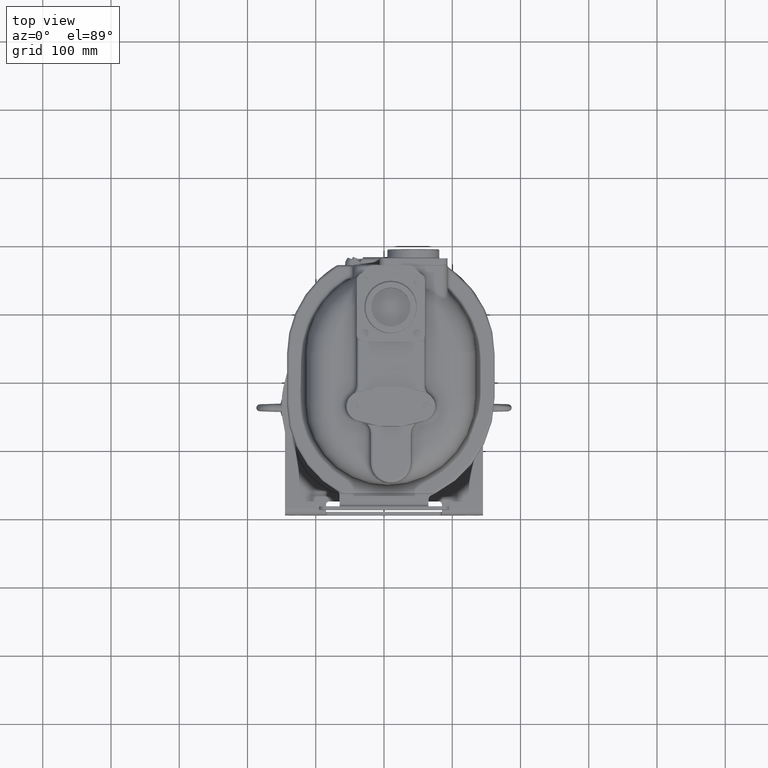
[diagram: clean part render]
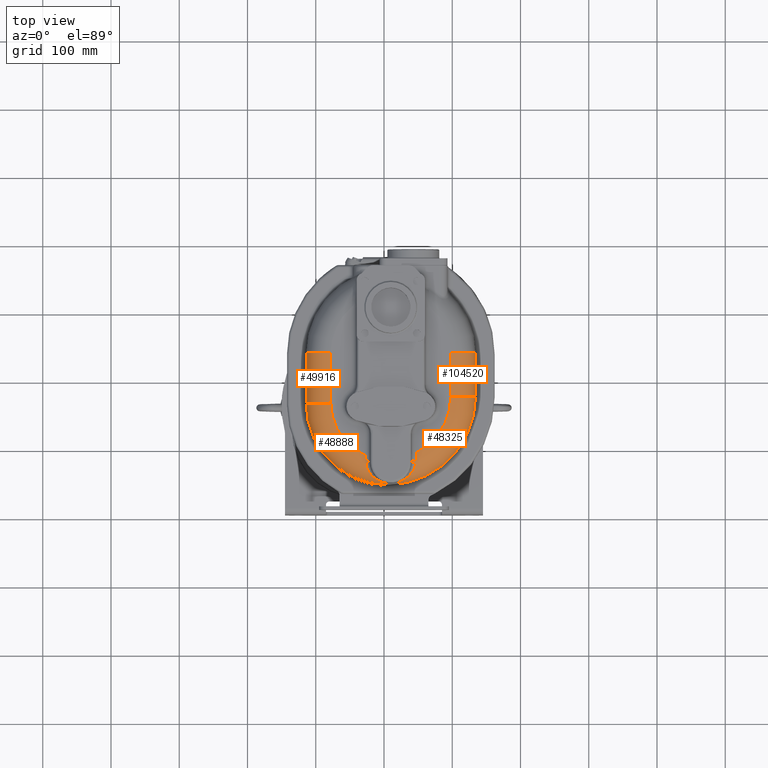
[diagram: same view with one multi-face feature highlighted, each face labeled with its STEP entity id]
A machine part, top view. The highlighted faces form ONE feature: a constant-radius fillet chain: 4 tangent blend faces with common blend radius 36 mm. The faces share edges in the B-rep.
Their STEP definitions:
[1] entity #49916 (Cylinder):
#212=CARTESIAN_POINT('',(-7.8E1,1.55E2,4.8E1));
#213=DIRECTION('',(0.E0,-1.E0,0.E0));
#214=DIRECTION('',(0.E0,0.E0,1.E0));
#215=AXIS2_PLACEMENT_3D('',#212,#213,#214);
#255=DIRECTION('',(0.E0,-1.E0,0.E0));
#256=VECTOR('',#255,7.4E1);
#257=CARTESIAN_POINT('',(-7.8E1,2.29E2,8.4E1));
#258=LINE('',#257,#256);
#598=DIRECTION('',(0.E0,-1.E0,0.E0));
#599=VECTOR('',#598,7.4E1);
#600=CARTESIAN_POINT('',(-1.14E2,2.29E2,4.8E1));
#601=LINE('',#600,#599);
#606=CARTESIAN_POINT('',(-7.8E1,2.29E2,4.8E1));
#607=DIRECTION('',(0.E0,-1.E0,0.E0));
#608=DIRECTION('',(0.E0,0.E0,1.E0));
#609=AXIS2_PLACEMENT_3D('',#606,#607,#608);
#40074=CARTESIAN_POINT('',(-1.14E2,1.55E2,4.8E1));
#40075=VERTEX_POINT('',#40074);
#40076=CARTESIAN_POINT('',(-7.8E1,2.29E2,8.4E1));
#40077=CARTESIAN_POINT('',(-7.8E1,1.55E2,8.4E1));
#40078=VERTEX_POINT('',#40076);
#40079=VERTEX_POINT('',#40077);
#40080=CARTESIAN_POINT('',(-1.14E2,2.29E2,4.8E1));
#40081=VERTEX_POINT('',#40080);
#49905=CARTESIAN_POINT('',(-7.8E1,2.290218436E2,4.8E1));
#49906=DIRECTION('',(0.E0,-1.E0,0.E0));
#49907=DIRECTION('',(0.E0,0.E0,1.E0));
#49908=AXIS2_PLACEMENT_3D('',#49905,#49906,#49907);
#49909=CYLINDRICAL_SURFACE('',#49908,3.6E1);
#49910=ORIENTED_EDGE('',*,*,#48981,.T.);
#49911=ORIENTED_EDGE('',*,*,#48882,.T.);
#49912=ORIENTED_EDGE('',*,*,#49898,.F.);
#49913=ORIENTED_EDGE('',*,*,#49155,.F.);
#49914=EDGE_LOOP('',(#49910,#49911,#49912,#49913));
#49915=FACE_OUTER_BOUND('',#49914,.F.);
#49916=ADVANCED_FACE('',(#49915),#49909,.T.);
#216=CIRCLE('',#215,3.6E1);
#610=CIRCLE('',#609,3.6E1);
#48882=EDGE_CURVE('',#40079,#40075,#216,.T.);
#48981=EDGE_CURVE('',#40078,#40079,#258,.T.);
#49155=EDGE_CURVE('',#40078,#40081,#610,.T.);
#49898=EDGE_CURVE('',#40081,#40075,#601,.T.);
[2] entity #48888 (Torus):
#132=CARTESIAN_POINT('',(5.E0,7.2E1,4.8E1));
#133=DIRECTION('',(1.E0,0.E0,0.E0));
#134=DIRECTION('',(0.E0,-9.470367364472E-1,3.211252400848E-1));
#135=AXIS2_PLACEMENT_3D('',#132,#133,#134);
#147=CARTESIAN_POINT('',(-2.8E1,7.884226894123E1,8.4E1));
#148=CARTESIAN_POINT('',(-2.796887335442E1,7.844482621410E1,8.399999997615E1));
#149=CARTESIAN_POINT('',(-2.790773889932E1,7.765366918214E1,8.398965294363E1));
#150=CARTESIAN_POINT('',(-2.781935700238E1,7.647946031069E1,8.394360526421E1));
#151=CARTESIAN_POINT('',(-2.773414064813E1,7.531769571966E1,8.386752703401E1));
#152=CARTESIAN_POINT('',(-2.765197814064E1,7.416871936770E1,8.376190215763E1));
#153=CARTESIAN_POINT('',(-2.757275213691E1,7.303276223749E1,8.362720156811E1));
#154=CARTESIAN_POINT('',(-2.749635265713E1,7.191008760233E1,8.346388172989E1));
#155=CARTESIAN_POINT('',(-2.742268197510E1,7.080105447963E1,8.327240920041E1));
#156=CARTESIAN_POINT('',(-2.737531113419E1,7.007085606924E1,8.312626078228E1));
#157=CARTESIAN_POINT('',(-2.735205480582E1,6.970821914830E1,8.304866082929E1));
#159=CARTESIAN_POINT('',(-2.735205480582E1,6.970821914830E1,8.304866082929E1));
#160=CARTESIAN_POINT('',(-2.733506702982E1,6.944333312177E1,8.299197838754E1));
#161=CARTESIAN_POINT('',(-2.729365067701E1,6.891054423816E1,8.287320386509E1));
#162=CARTESIAN_POINT('',(-2.720861721266E1,6.810292424292E1,8.267861022019E1));
#163=CARTESIAN_POINT('',(-2.709998633077E1,6.728676671709E1,8.246719675105E1));
#164=CARTESIAN_POINT('',(-2.696712752290E1,6.646272181276E1,8.223874572294E1));
#165=CARTESIAN_POINT('',(-2.680936846517E1,6.563117099338E1,8.199296987110E1));
#166=CARTESIAN_POINT('',(-2.662605019077E1,6.479268387211E1,8.172962639141E1));
#167=CARTESIAN_POINT('',(-2.641651116625E1,6.394785035173E1,8.144847779957E1));
#168=CARTESIAN_POINT('',(-2.618009970314E1,6.309733790166E1,8.114930967858E1));
#169=CARTESIAN_POINT('',(-2.591617665159E1,6.224187509509E1,8.083192954160E1));
#170=CARTESIAN_POINT('',(-2.562412126974E1,6.138225653823E1,8.049617142217E1));
#171=CARTESIAN_POINT('',(-2.530333633348E1,6.051934141158E1,8.014189892427E1));
#172=CARTESIAN_POINT('',(-2.495325350619E1,5.965405311886E1,7.976900868750E1));
#173=CARTESIAN_POINT('',(-2.457333860447E1,5.878737793606E1,7.937743369338E1));
#174=CARTESIAN_POINT('',(-2.416309685851E1,5.792036340624E1,7.896714663396E1));
#175=CARTESIAN_POINT('',(-2.372207837150E1,5.705411676285E1,7.853816355169E1));
#176=CARTESIAN_POINT('',(-2.324988315131E1,5.618980214433E1,7.809054716787E1));
#177=CARTESIAN_POINT('',(-2.274616637860E1,5.532863809976E1,7.762441062673E1));
#178=CARTESIAN_POINT('',(-2.221064343787E1,5.447189438491E1,7.713992122378E1));
#179=CARTESIAN_POINT('',(-2.164309503947E1,5.362088870435E1,7.663730449218E1));
#180=CARTESIAN_POINT('',(-2.104337232981E1,5.277698314329E1,7.611684859587E1));
#181=CARTESIAN_POINT('',(-2.041140218633E1,5.194158053117E1,7.557890926073E1));
#182=CARTESIAN_POINT('',(-1.974719272740E1,5.111612064981E1,7.502391532228E1));
#183=CARTESIAN_POINT('',(-1.905083937689E1,5.030207656484E1,7.445237523273E1));
#184=CARTESIAN_POINT('',(-1.832253171382E1,4.950095106789E1,7.386488475885E1));
#185=CARTESIAN_POINT('',(-1.756256139461E1,4.871427323612E1,7.326213614895E1));
#186=CARTESIAN_POINT('',(-1.677133217686E1,4.794359569630E1,7.264492960288E1));
#187=CARTESIAN_POINT('',(-1.594937201179E1,4.719049187728E1,7.201418699668E1));
#188=CARTESIAN_POINT('',(-1.509734938998E1,4.645655449543E1,7.137096948445E1));
#189=CARTESIAN_POINT('',(-1.421609435858E1,4.574339432873E1,7.071649908693E1));
#190=CARTESIAN_POINT('',(-1.330662686067E1,4.505264003120E1,7.005218592933E1));
#191=CARTESIAN_POINT('',(-1.237019450456E1,4.438593852243E1,6.937966206206E1));
#192=CARTESIAN_POINT('',(-1.140832303049E1,4.374495574049E1,6.870082321632E1));
#193=CARTESIAN_POINT('',(-1.042288232655E1,4.313137651769E1,6.801787893526E1));
#194=CARTESIAN_POINT('',(-9.416172200176E0,4.254690246470E1,6.733341152634E1));
#195=CARTESIAN_POINT('',(-8.391026777500E0,4.199324318742E1,6.665043943625E1));
#196=CARTESIAN_POINT('',(-7.350937144428E0,4.147209731216E1,6.597247976564E1));
#197=CARTESIAN_POINT('',(-6.300174870832E0,4.098511321891E1,6.530359229029E1));
#198=CARTESIAN_POINT('',(-5.243895330833E0,4.053382284783E1,6.464838451407E1));
#199=CARTESIAN_POINT('',(-4.188151540611E0,4.011953144889E1,6.401193047520E1));
#200=CARTESIAN_POINT('',(-3.139808161606E0,3.974318221899E1,6.339959857333E1));
#201=CARTESIAN_POINT('',(-2.106179500850E0,3.940516615658E1,6.281669849873E1));
#202=CARTESIAN_POINT('',(-1.094558676794E0,3.910518191326E1,6.226807867071E1));
#203=CARTESIAN_POINT('',(-1.115560433838E-1,3.884213606269E1,6.175766259163E1));
#204=CARTESIAN_POINT('',(8.375364557941E-1,3.861415841496E1,6.128808666304E1));
#205=CARTESIAN_POINT('',(1.749071453210E0,3.841876093870E1,6.086059297184E1));
#206=CARTESIAN_POINT('',(2.621311378866E0,3.825302277921E1,6.047503136011E1));
#207=CARTESIAN_POINT('',(3.454174649291E0,3.811387181742E1,6.013017738922E1));
#208=CARTESIAN_POINT('',(4.248220830536E0,3.799836281671E1,5.982427999743E1));
#209=CARTESIAN_POINT('',(4.753663599509E0,3.793516079517E1,5.964450929975E1));
#210=CARTESIAN_POINT('',(5.E0,3.790667748790E1,5.956050864305E1));
#212=CARTESIAN_POINT('',(-7.8E1,1.55E2,4.8E1));
#213=DIRECTION('',(0.E0,-1.E0,0.E0));
#214=DIRECTION('',(0.E0,0.E0,1.E0));
#215=AXIS2_PLACEMENT_3D('',#212,#213,#214);
#250=CARTESIAN_POINT('',(5.E0,1.55E2,8.4E1));
#251=DIRECTION('',(0.E0,0.E0,1.E0));
#252=DIRECTION('',(-1.E0,0.E0,0.E0));
#253=AXIS2_PLACEMENT_3D('',#250,#251,#252);
#616=CARTESIAN_POINT('',(5.E0,1.55E2,4.8E1));
#617=DIRECTION('',(0.E0,0.E0,1.E0));
#618=DIRECTION('',(-1.E0,0.E0,0.E0));
#619=AXIS2_PLACEMENT_3D('',#616,#617,#618);
#40072=CARTESIAN_POINT('',(4.999999999999E0,3.6E1,4.8E1));
#40073=VERTEX_POINT('',#40072);
#40074=CARTESIAN_POINT('',(-1.14E2,1.55E2,4.8E1));
#40075=VERTEX_POINT('',#40074);
#40077=CARTESIAN_POINT('',(-7.8E1,1.55E2,8.4E1));
#40079=VERTEX_POINT('',#40077);
#40109=CARTESIAN_POINT('',(-2.8E1,7.884226894123E1,8.4E1));
#40110=VERTEX_POINT('',#40109);
#40113=VERTEX_POINT('',#157);
#40115=VERTEX_POINT('',#210);
#48871=CARTESIAN_POINT('',(5.E0,1.55E2,4.8E1));
#48872=DIRECTION('',(0.E0,0.E0,-1.E0));
#48873=DIRECTION('',(-9.999999831529E-1,1.835596628325E-4,0.E0));
#48874=AXIS2_PLACEMENT_3D('',#48871,#48872,#48873);
#48875=TOROIDAL_SURFACE('',#48874,8.3E1,3.6E1);
#48877=ORIENTED_EDGE('',*,*,#48876,.T.);
#48878=ORIENTED_EDGE('',*,*,#48861,.T.);
#48879=ORIENTED_EDGE('',*,*,#48321,.T.);
#48881=ORIENTED_EDGE('',*,*,#48880,.F.);
#48883=ORIENTED_EDGE('',*,*,#48882,.F.);
#48885=ORIENTED_EDGE('',*,*,#48884,.T.);
#48886=EDGE_LOOP('',(#48877,#48878,#48879,#48881,#48883,#48885));
#48887=FACE_OUTER_BOUND('',#48886,.F.);
#48888=ADVANCED_FACE('',(#48887),#48875,.T.);
#136=CIRCLE('',#135,3.6E1);
#158=B_SPLINE_CURVE_WITH_KNOTS('',3,(#147,#148,#149,#150,#151,#152,#153,#154,
#155,#156,#157),.UNSPECIFIED.,.F.,.F.,(4,1,1,1,1,1,1,1,4),(0.E0,1.25E-1,2.5E-1,
3.75E-1,5.E-1,6.25E-1,7.5E-1,8.75E-1,1.E0),.UNSPECIFIED.);
#211=B_SPLINE_CURVE_WITH_KNOTS('',3,(#159,#160,#161,#162,#163,#164,#165,#166,
#167,#168,#169,#170,#171,#172,#173,#174,#175,#176,#177,#178,#179,#180,#181,#182,
#183,#184,#185,#186,#187,#188,#189,#190,#191,#192,#193,#194,#195,#196,#197,#198,
#199,#200,#201,#202,#203,#204,#205,#206,#207,#208,#209,#210),.UNSPECIFIED.,.F.,
.F.,(4,1,1,1,1,1,1,1,1,1,1,1,1,1,1,1,1,1,1,1,1,1,1,1,1,1,1,1,1,1,1,1,1,1,1,1,1,
1,1,1,1,1,1,1,1,1,1,1,1,4),(0.E0,2.040816326531E-2,4.081632653061E-2,
6.122448979592E-2,8.163265306122E-2,1.020408163265E-1,1.224489795918E-1,
1.428571428571E-1,1.632653061224E-1,1.836734693878E-1,2.040816326531E-1,
2.244897959184E-1,2.448979591837E-1,2.653061224490E-1,2.857142857143E-1,
3.061224489796E-1,3.265306122449E-1,3.469387755102E-1,3.673469387755E-1,
3.877551020408E-1,4.081632653061E-1,4.285714285714E-1,4.489795918367E-1,
4.693877551020E-1,4.897959183673E-1,5.102040816327E-1,5.306122448980E-1,
5.510204081633E-1,5.714285714286E-1,5.918367346939E-1,6.122448979592E-1,
6.326530612245E-1,6.530612244898E-1,6.734693877551E-1,6.938775510204E-1,
7.142857142857E-1,7.346938775510E-1,7.551020408163E-1,7.755102040816E-1,
7.959183673469E-1,8.163265306122E-1,8.367346938776E-1,8.571428571429E-1,
8.775510204082E-1,8.979591836735E-1,9.183673469388E-1,9.387755102041E-1,
9.591836734694E-1,9.795918367347E-1,1.E0),.UNSPECIFIED.);
#216=CIRCLE('',#215,3.6E1);
#254=CIRCLE('',#253,8.3E1);
#620=CIRCLE('',#619,1.19E2);
#48321=EDGE_CURVE('',#40115,#40073,#136,.T.);
#48861=EDGE_CURVE('',#40113,#40115,#211,.T.);
#48876=EDGE_CURVE('',#40110,#40113,#158,.T.);
#48880=EDGE_CURVE('',#40075,#40073,#620,.T.);
#48882=EDGE_CURVE('',#40079,#40075,#216,.T.);
#48884=EDGE_CURVE('',#40079,#40110,#254,.T.);
[3] entity #48325 (Torus):
#33=CARTESIAN_POINT('',(5.E0,1.65E2,8.4E1));
#34=DIRECTION('',(0.E0,0.E0,1.E0));
#35=DIRECTION('',(4.623655913954E-1,-8.866893818545E-1,0.E0));
#36=AXIS2_PLACEMENT_3D('',#33,#34,#35);
#48=CARTESIAN_POINT('',(5.E0,3.790667748790E1,5.956050864305E1));
#49=CARTESIAN_POINT('',(5.244708909877E0,3.787851770718E1,5.947746208673E1));
#50=CARTESIAN_POINT('',(5.724705178502E0,3.782793061494E1,5.932211304233E1));
#51=CARTESIAN_POINT('',(6.413720475741E0,3.776775967918E1,5.912068004852E1));
#52=CARTESIAN_POINT('',(7.076609140445E0,3.772127943457E1,5.894782859928E1));
#53=CARTESIAN_POINT('',(7.716526203015E0,3.768699100014E1,5.880138739014E1));
#54=CARTESIAN_POINT('',(8.336997827785E0,3.766363572305E1,5.867932613679E1));
#55=CARTESIAN_POINT('',(8.941253645545E0,3.765023330849E1,5.857997515355E1));
#56=CARTESIAN_POINT('',(9.532405803381E0,3.764603069732E1,5.850195732175E1));
#57=CARTESIAN_POINT('',(1.011341266516E1,3.765048202750E1,5.844419359864E1));
#58=CARTESIAN_POINT('',(1.068711730766E1,3.766322696867E1,5.840588551555E1));
#59=CARTESIAN_POINT('',(1.125627127465E1,3.768407666623E1,5.838650554610E1));
#60=CARTESIAN_POINT('',(1.182356874431E1,3.771300388366E1,5.838578588841E1));
#61=CARTESIAN_POINT('',(1.239167607903E1,3.775013980031E1,5.840371622456E1));
#62=CARTESIAN_POINT('',(1.296326870130E1,3.779577575242E1,5.844054370601E1));
#63=CARTESIAN_POINT('',(1.354105977679E1,3.785036970565E1,5.849677703828E1));
#64=CARTESIAN_POINT('',(1.412783214415E1,3.791455778603E1,5.857319329998E1));
#65=CARTESIAN_POINT('',(1.472646706325E1,3.798917146614E1,5.867084929222E1));
#66=CARTESIAN_POINT('',(1.533996501374E1,3.807526006475E1,5.879109581638E1));
#67=CARTESIAN_POINT('',(1.597145818122E1,3.817411742216E1,5.893558944746E1));
#68=CARTESIAN_POINT('',(1.662420719467E1,3.828731213520E1,5.910629993922E1));
#69=CARTESIAN_POINT('',(1.730157493636E1,3.841671883955E1,5.930550627733E1));
#70=CARTESIAN_POINT('',(1.800695998722E1,3.856454544934E1,5.953577194267E1));
#71=CARTESIAN_POINT('',(1.874367833729E1,3.873334855625E1,5.979988482942E1));
#72=CARTESIAN_POINT('',(1.951475949439E1,3.892602034742E1,6.010073760008E1));
#73=CARTESIAN_POINT('',(2.032268513438E1,3.914574044495E1,6.044114598791E1));
#74=CARTESIAN_POINT('',(2.116896726403E1,3.939584679852E1,6.082355015523E1));
#75=CARTESIAN_POINT('',(2.205365371526E1,3.967961391784E1,6.124961355566E1));
#76=CARTESIAN_POINT('',(2.297509670039E1,4.000003104198E1,6.171989757451E1));
#77=CARTESIAN_POINT('',(2.392973545714E1,4.035951681600E1,6.223354233655E1));
#78=CARTESIAN_POINT('',(2.491207558220E1,4.075963156156E1,6.278806537650E1));
#79=CARTESIAN_POINT('',(2.591518229664E1,4.120096825825E1,6.337951162992E1));
#80=CARTESIAN_POINT('',(2.693133270714E1,4.168317514033E1,6.400281197460E1));
#81=CARTESIAN_POINT('',(2.795264905621E1,4.220507059022E1,6.465223117733E1));
#82=CARTESIAN_POINT('',(2.897177927849E1,4.276490988423E1,6.532192025930E1));
#83=CARTESIAN_POINT('',(2.998224641538E1,4.336060975511E1,6.600629790408E1));
#84=CARTESIAN_POINT('',(3.097859065452E1,4.398993295776E1,6.670028883377E1));
#85=CARTESIAN_POINT('',(3.195634930009E1,4.465061351781E1,6.739942683503E1));
#86=CARTESIAN_POINT('',(3.291194482135E1,4.534042693225E1,6.809986070793E1));
#87=CARTESIAN_POINT('',(3.384253649953E1,4.605721849704E1,6.879830315908E1));
#88=CARTESIAN_POINT('',(3.474588063935E1,4.679891192502E1,6.949196107496E1));
#89=CARTESIAN_POINT('',(3.562020946788E1,4.756350619218E1,7.017846202682E1));
#90=CARTESIAN_POINT('',(3.646413263467E1,4.834906695715E1,7.085578603710E1));
#91=CARTESIAN_POINT('',(3.727656262694E1,4.915371885186E1,7.152220835974E1));
#92=CARTESIAN_POINT('',(3.805665774087E1,4.997563835384E1,7.217625174664E1));
#93=CARTESIAN_POINT('',(3.880377952351E1,5.081304857467E1,7.281664794559E1));
#94=CARTESIAN_POINT('',(3.951746140868E1,5.166421647694E1,7.344230728128E1));
#95=CARTESIAN_POINT('',(4.019738480653E1,5.252745142292E1,7.405229414786E1));
#96=CARTESIAN_POINT('',(4.084336107387E1,5.340110543063E1,7.464580764386E1));
#97=CARTESIAN_POINT('',(4.145531737546E1,5.428357447841E1,7.522216597626E1));
#98=CARTESIAN_POINT('',(4.203328527410E1,5.517330058688E1,7.578079378601E1));
#99=CARTESIAN_POINT('',(4.257739126447E1,5.606877454697E1,7.632121177696E1));
#100=CARTESIAN_POINT('',(4.308784855734E1,5.696853900143E1,7.684302804389E1));
#101=CARTESIAN_POINT('',(4.356494955247E1,5.787119143619E1,7.734593054251E1));
#102=CARTESIAN_POINT('',(4.400905911944E1,5.877538770507E1,7.782968081154E1));
#103=CARTESIAN_POINT('',(4.442060781861E1,5.967984476234E1,7.829410801595E1));
#104=CARTESIAN_POINT('',(4.480008557122E1,6.058334364972E1,7.873910378228E1));
#105=CARTESIAN_POINT('',(4.514803534354E1,6.148473208191E1,7.916461733028E1));
#106=CARTESIAN_POINT('',(4.546504679125E1,6.238292637060E1,7.957065074576E1));
#107=CARTESIAN_POINT('',(4.575175013509E1,6.327691358474E1,7.995725471197E1));
#108=CARTESIAN_POINT('',(4.600880966418E1,6.416575161624E1,8.032452373832E1));
#109=CARTESIAN_POINT('',(4.623691836684E1,6.504857358052E1,8.067259326181E1));
#110=CARTESIAN_POINT('',(4.643679035477E1,6.592458010078E1,8.100163271824E1));
#111=CARTESIAN_POINT('',(4.660915916357E1,6.679306663347E1,8.131185045523E1));
#112=CARTESIAN_POINT('',(4.675475869656E1,6.765333597604E1,8.160346139038E1));
#113=CARTESIAN_POINT('',(4.687434909699E1,6.850492596284E1,8.187675556859E1));
#114=CARTESIAN_POINT('',(4.696864141025E1,6.934703023634E1,8.213191703999E1));
#115=CARTESIAN_POINT('',(4.701516855599E1,6.990218075913E1,8.229023822901E1));
#116=CARTESIAN_POINT('',(4.703446095104E1,7.017807645928E1,8.236648476307E1));
#118=CARTESIAN_POINT('',(4.703446095104E1,7.017807645928E1,8.236648476307E1));
#119=CARTESIAN_POINT('',(4.706106796778E1,7.055858102513E1,8.247164099206E1));
#120=CARTESIAN_POINT('',(4.711528481374E1,7.132632626168E1,8.267257293733E1));
#121=CARTESIAN_POINT('',(4.719965314713E1,7.249701384692E1,8.294497537196E1));
#122=CARTESIAN_POINT('',(4.728719507150E1,7.368681505726E1,8.318783963594E1));
#123=CARTESIAN_POINT('',(4.737802058141E1,7.489545836863E1,8.340052131149E1));
#124=CARTESIAN_POINT('',(4.747225442330E1,7.612279462099E1,8.358238917504E1));
#125=CARTESIAN_POINT('',(4.757002501039E1,7.736865854406E1,8.373278627283E1));
#126=CARTESIAN_POINT('',(4.767146701404E1,7.863290263167E1,8.385103918925E1));
#127=CARTESIAN_POINT('',(4.777672672746E1,7.991544822632E1,8.393645243976E1));
#128=CARTESIAN_POINT('',(4.788594031510E1,8.121605665032E1,8.398830434233E1));
#129=CARTESIAN_POINT('',(4.796151744412E1,8.209541928996E1,8.399999997636E1));
#130=CARTESIAN_POINT('',(4.8E1,8.253788748751E1,8.4E1));
#132=CARTESIAN_POINT('',(5.E0,7.2E1,4.8E1));
#133=DIRECTION('',(1.E0,0.E0,0.E0));
#134=DIRECTION('',(0.E0,-9.470367364472E-1,3.211252400848E-1));
#135=AXIS2_PLACEMENT_3D('',#132,#133,#134);
#210=CARTESIAN_POINT('',(5.E0,3.790667748790E1,5.956050864305E1));
#634=CARTESIAN_POINT('',(5.E0,1.65E2,4.8E1));
#635=DIRECTION('',(0.E0,0.E0,1.E0));
#636=DIRECTION('',(0.E0,-1.E0,0.E0));
#637=AXIS2_PLACEMENT_3D('',#634,#635,#636);
#40045=CARTESIAN_POINT('',(9.8E1,1.65E2,4.8E1));
#40046=DIRECTION('',(0.E0,1.E0,0.E0));
#40047=DIRECTION('',(0.E0,0.E0,1.E0));
#40048=AXIS2_PLACEMENT_3D('',#40045,#40046,#40047);
#40064=CARTESIAN_POINT('',(9.8E1,1.65E2,8.4E1));
#40066=VERTEX_POINT('',#40064);
#40068=CARTESIAN_POINT('',(1.34E2,1.65E2,4.8E1));
#40070=VERTEX_POINT('',#40068);
#40072=CARTESIAN_POINT('',(4.999999999999E0,3.6E1,4.8E1));
#40073=VERTEX_POINT('',#40072);
#40115=VERTEX_POINT('',#210);
#40117=VERTEX_POINT('',#116);
#40119=VERTEX_POINT('',#130);
#48308=CARTESIAN_POINT('',(5.E0,1.65E2,4.8E1));
#48309=DIRECTION('',(0.E0,0.E0,-1.E0));
#48310=DIRECTION('',(-1.693302317542E-4,-9.999999856636E-1,0.E0));
#48311=AXIS2_PLACEMENT_3D('',#48308,#48309,#48310);
#48312=TOROIDAL_SURFACE('',#48311,9.3E1,3.6E1);
#48314=ORIENTED_EDGE('',*,*,#48313,.T.);
#48315=ORIENTED_EDGE('',*,*,#48298,.T.);
#48316=ORIENTED_EDGE('',*,*,#48213,.T.);
#48318=ORIENTED_EDGE('',*,*,#48317,.T.);
#48320=ORIENTED_EDGE('',*,*,#48319,.F.);
#48322=ORIENTED_EDGE('',*,*,#48321,.F.);
#48323=EDGE_LOOP('',(#48314,#48315,#48316,#48318,#48320,#48322));
#48324=FACE_OUTER_BOUND('',#48323,.F.);
#48325=ADVANCED_FACE('',(#48324),#48312,.T.);
#37=CIRCLE('',#36,9.3E1);
#117=B_SPLINE_CURVE_WITH_KNOTS('',3,(#48,#49,#50,#51,#52,#53,#54,#55,#56,#57,
#58,#59,#60,#61,#62,#63,#64,#65,#66,#67,#68,#69,#70,#71,#72,#73,#74,#75,#76,#77,
#78,#79,#80,#81,#82,#83,#84,#85,#86,#87,#88,#89,#90,#91,#92,#93,#94,#95,#96,#97,
#98,#99,#100,#101,#102,#103,#104,#105,#106,#107,#108,#109,#110,#111,#112,#113,
#114,#115,#116),.UNSPECIFIED.,.F.,.F.,(4,1,1,1,1,1,1,1,1,1,1,1,1,1,1,1,1,1,1,1,
1,1,1,1,1,1,1,1,1,1,1,1,1,1,1,1,1,1,1,1,1,1,1,1,1,1,1,1,1,1,1,1,1,1,1,1,1,1,1,1,
1,1,1,1,1,1,4),(0.E0,1.515151515152E-2,3.030303030303E-2,4.545454545455E-2,
6.060606060606E-2,7.575757575758E-2,9.090909090909E-2,1.060606060606E-1,
1.212121212121E-1,1.363636363636E-1,1.515151515152E-1,1.666666666667E-1,
1.818181818182E-1,1.969696969697E-1,2.121212121212E-1,2.272727272727E-1,
2.424242424242E-1,2.575757575758E-1,2.727272727273E-1,2.878787878788E-1,
3.030303030303E-1,3.181818181818E-1,3.333333333333E-1,3.484848484848E-1,
3.636363636364E-1,3.787878787879E-1,3.939393939394E-1,4.090909090909E-1,
4.242424242424E-1,4.393939393939E-1,4.545454545455E-1,4.696969696970E-1,
4.848484848485E-1,5.E-1,5.151515151515E-1,5.303030303030E-1,5.454545454545E-1,
5.606060606061E-1,5.757575757576E-1,5.909090909091E-1,6.060606060606E-1,
6.212121212121E-1,6.363636363636E-1,6.515151515152E-1,6.666666666667E-1,
6.818181818182E-1,6.969696969697E-1,7.121212121212E-1,7.272727272727E-1,
7.424242424242E-1,7.575757575758E-1,7.727272727273E-1,7.878787878788E-1,
8.030303030303E-1,8.181818181818E-1,8.333333333333E-1,8.484848484848E-1,
8.636363636364E-1,8.787878787879E-1,8.939393939394E-1,9.090909090909E-1,
9.242424242424E-1,9.393939393939E-1,9.545454545455E-1,9.696969696970E-1,
9.848484848485E-1,1.E0),.UNSPECIFIED.);
#131=B_SPLINE_CURVE_WITH_KNOTS('',3,(#118,#119,#120,#121,#122,#123,#124,#125,
#126,#127,#128,#129,#130),.UNSPECIFIED.,.F.,.F.,(4,1,1,1,1,1,1,1,1,1,4),(0.E0,
1.E-1,2.E-1,3.E-1,4.E-1,5.E-1,6.E-1,7.E-1,8.E-1,9.E-1,1.E0),.UNSPECIFIED.);
#136=CIRCLE('',#135,3.6E1);
#638=CIRCLE('',#637,1.29E2);
#40049=CIRCLE('',#40048,3.6E1);
#48213=EDGE_CURVE('',#40119,#40066,#37,.T.);
#48298=EDGE_CURVE('',#40117,#40119,#131,.T.);
#48313=EDGE_CURVE('',#40115,#40117,#117,.T.);
#48317=EDGE_CURVE('',#40066,#40070,#40049,.T.);
#48319=EDGE_CURVE('',#40073,#40070,#638,.T.);
#48321=EDGE_CURVE('',#40115,#40073,#136,.T.);
[4] entity #104520 (Cylinder):
#29=DIRECTION('',(0.E0,1.E0,0.E0));
#30=VECTOR('',#29,6.4E1);
#31=CARTESIAN_POINT('',(9.8E1,1.65E2,8.4E1));
#32=LINE('',#31,#30);
#647=DIRECTION('',(0.E0,1.E0,0.E0));
#648=VECTOR('',#647,6.4E1);
#649=CARTESIAN_POINT('',(1.34E2,1.65E2,4.8E1));
#650=LINE('',#649,#648);
#775=CARTESIAN_POINT('',(9.8E1,2.29E2,4.8E1));
#776=DIRECTION('',(0.E0,1.E0,0.E0));
#777=DIRECTION('',(0.E0,0.E0,1.E0));
#778=AXIS2_PLACEMENT_3D('',#775,#776,#777);
#40045=CARTESIAN_POINT('',(9.8E1,1.65E2,4.8E1));
#40046=DIRECTION('',(0.E0,1.E0,0.E0));
#40047=DIRECTION('',(0.E0,0.E0,1.E0));
#40048=AXIS2_PLACEMENT_3D('',#40045,#40046,#40047);
#40064=CARTESIAN_POINT('',(9.8E1,1.65E2,8.4E1));
#40065=CARTESIAN_POINT('',(9.8E1,2.29E2,8.4E1));
#40066=VERTEX_POINT('',#40064);
#40067=VERTEX_POINT('',#40065);
#40068=CARTESIAN_POINT('',(1.34E2,1.65E2,4.8E1));
#40069=CARTESIAN_POINT('',(1.34E2,2.29E2,4.8E1));
#40070=VERTEX_POINT('',#40068);
#40071=VERTEX_POINT('',#40069);
#104509=CARTESIAN_POINT('',(9.8E1,1.649781564E2,4.8E1));
#104510=DIRECTION('',(0.E0,1.E0,0.E0));
#104511=DIRECTION('',(0.E0,0.E0,1.E0));
#104512=AXIS2_PLACEMENT_3D('',#104509,#104510,#104511);
#104513=CYLINDRICAL_SURFACE('',#104512,3.6E1);
#104514=ORIENTED_EDGE('',*,*,#48211,.T.);
#104515=ORIENTED_EDGE('',*,*,#49987,.T.);
#104516=ORIENTED_EDGE('',*,*,#49953,.F.);
#104517=ORIENTED_EDGE('',*,*,#48317,.F.);
#104518=EDGE_LOOP('',(#104514,#104515,#104516,#104517));
#104519=FACE_OUTER_BOUND('',#104518,.F.);
#104520=ADVANCED_FACE('',(#104519),#104513,.T.);
#779=CIRCLE('',#778,3.6E1);
#40049=CIRCLE('',#40048,3.6E1);
#48211=EDGE_CURVE('',#40066,#40067,#32,.T.);
#48317=EDGE_CURVE('',#40066,#40070,#40049,.T.);
#49953=EDGE_CURVE('',#40070,#40071,#650,.T.);
#49987=EDGE_CURVE('',#40067,#40071,#779,.T.);